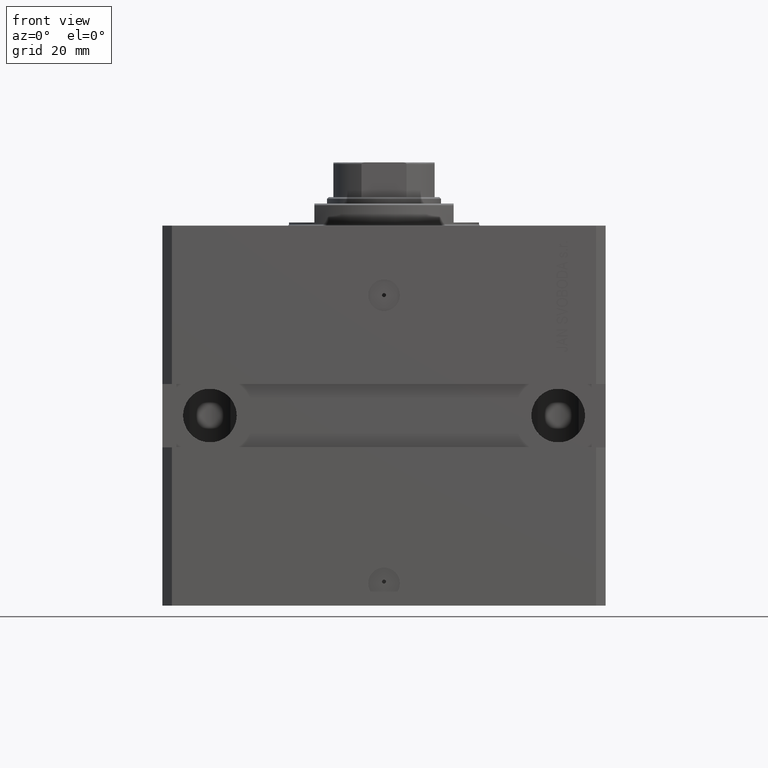
[diagram: clean part render]
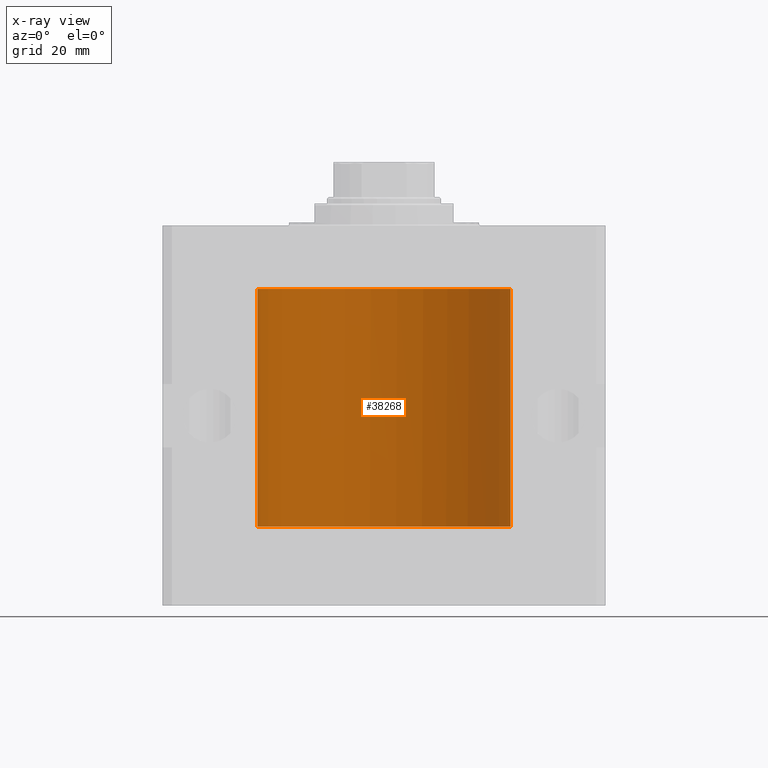
[diagram: x-ray — body ghosted, one internal face saturated and labeled with its STEP entity id]
A machine part, front view, then the same camera in x-ray: the body is ghosted and one INTERNAL B-rep face — a face not visible from any outside direction — is saturated and labeled: STEP entity #38268.
In plain terms, the highlighted cylindrical surface (partial cylindrical patch) has radius 40 mm, axis along (0, 0, 1).
Its self-contained STEP definition (entity closure, byte-faithful):
#646 = VERTEX_POINT ( 'NONE', #18501 ) ;
#1797 = CARTESIAN_POINT ( 'NONE',  ( 40.00000000000004974, 3.413887943360836494E-13, -34.37499999999679545 ) ) ;
#2349 = CARTESIAN_POINT ( 'NONE',  ( 40.00000000000000000, 0.000000000000000000, -95.00000000000000000 ) ) ;
#2494 = ORIENTED_EDGE ( 'NONE', *, *, #45490, .T. ) ;
#3295 = EDGE_LOOP ( 'NONE', ( #16822, #30318, #18247, #48485, #35360, #36513, #2494, #11039 ) ) ;
#4794 = CARTESIAN_POINT ( 'NONE',  ( 39.99511688944026844, 0.6250000000083444363, -34.99999999999904787 ) ) ;
#5038 = CARTESIAN_POINT ( 'NONE',  ( 39.99973678563279833, 0.1636739505491660862, -35.60873075736084559 ) ) ;
#5852 = CARTESIAN_POINT ( 'NONE',  ( 40.00000000000004974, 3.413887732429780293E-13, -94.37499999999677414 ) ) ;
#6877 = EDGE_CURVE ( 'NONE', #646, #42782, #9792, .T. ) ;
#7253 = CARTESIAN_POINT ( 'NONE',  ( 39.99511688944040344, 0.6249999999996637134, -34.83697203652874208 ) ) ;
#7490 = EDGE_CURVE ( 'NONE', #24640, #19104, #32615, .T. ) ;
#7761 = CARTESIAN_POINT ( 'NONE',  ( 39.99628216152225235, 0.5574163469044073338, -35.32638498894925050 ) ) ;
#9315 = DIRECTION ( 'NONE',  ( 1.000000000000000000, 0.000000000000000000, 0.000000000000000000 ) ) ;
#9792 = CIRCLE ( 'NONE', #26323, 40.00000000000000000 ) ;
#11039 = ORIENTED_EDGE ( 'NONE', *, *, #22628, .T. ) ;
#11058 = DIRECTION ( 'NONE',  ( 0.000000000000000000, 0.000000000000000000, 1.000000000000000000 ) ) ;
#13025 = FACE_OUTER_BOUND ( 'NONE', #3295, .T. ) ;
#13664 = VERTEX_POINT ( 'NONE', #33079 ) ;
#13731 = EDGE_CURVE ( 'NONE', #42782, #39512, #35260, .T. ) ;
#14245 = CARTESIAN_POINT ( 'NONE',  ( 39.99511688944039633, 0.6250000000000323075, -95.00000000000000000 ) ) ;
#16822 = ORIENTED_EDGE ( 'NONE', *, *, #13731, .F. ) ;
#17134 = LINE ( 'NONE', #2349, #34878 ) ;
#17305 = B_SPLINE_CURVE_WITH_KNOTS ( 'NONE', 3,
 ( #14245, #29038, #28554, #44101, #24602, #5852 ),
 .UNSPECIFIED., .F., .F.,
 ( 4, 2, 4 ),
 ( 0.0009772540346065596885, 0.001465659755748721432, 0.001954065476890883175 ),
 .UNSPECIFIED. ) ;
#17749 = EDGE_CURVE ( 'NONE', #13664, #24640, #33839, .T. ) ;
#18148 = AXIS2_PLACEMENT_3D ( 'NONE', #43118, #21158, #9315 ) ;
#18247 = ORIENTED_EDGE ( 'NONE', *, *, #29712, .T. ) ;
#18501 = CARTESIAN_POINT ( 'NONE',  ( 39.99511688944039633, 0.6250000000000323075, -95.00000000000000000 ) ) ;
#18611 = CARTESIAN_POINT ( 'NONE',  ( 39.99999999999999289, 0.1631284562790711046, -34.37500000000014211 ) ) ;
#18913 = CARTESIAN_POINT ( 'NONE',  ( 40.00000000000000000, 0.000000000000000000, -95.00000000000000000 ) ) ;
#19104 = VERTEX_POINT ( 'NONE', #1797 ) ;
#19269 = CARTESIAN_POINT ( 'NONE',  ( 40.00000000000000000, 0.000000000000000000, -20.00000000000000355 ) ) ;
#19594 = AXIS2_PLACEMENT_3D ( 'NONE', #44853, #11058, #26085 ) ;
#20089 = CARTESIAN_POINT ( 'NONE',  ( 39.99883059471594038, 0.3150922677711073816, -35.54594794608674135 ) ) ;
#20635 = VERTEX_POINT ( 'NONE', #43256 ) ;
#21158 = DIRECTION ( 'NONE',  ( -0.000000000000000000, -0.000000000000000000, 1.000000000000000000 ) ) ;
#22307 = CARTESIAN_POINT ( 'NONE',  ( 39.99626911702399923, 0.5586305617998182926, -34.67476192424639692 ) ) ;
#22628 = EDGE_CURVE ( 'NONE', #44985, #39512, #24347, .T. ) ;
#23056 = CARTESIAN_POINT ( 'NONE',  ( 39.99511688944039633, 0.6250000000003876899, -35.16310183128194922 ) ) ;
#24347 = CIRCLE ( 'NONE', #19594, 40.00000000000000000 ) ;
#24602 = CARTESIAN_POINT ( 'NONE',  ( 39.99999999999999289, 0.1631284562793052784, -94.37500000000015632 ) ) ;
#24640 = VERTEX_POINT ( 'NONE', #27018 ) ;
#26085 = DIRECTION ( 'NONE',  ( 1.000000000000000000, 0.000000000000000000, 0.000000000000000000 ) ) ;
#26323 = AXIS2_PLACEMENT_3D ( 'NONE', #41421, #30308, #26592 ) ;
#26391 = VECTOR ( 'NONE', #45893, 1000.000000000000000 ) ;
#26493 = CARTESIAN_POINT ( 'NONE',  ( -40.00000000000000000, 4.898587196589413026E-15, -20.00000000000000355 ) ) ;
#26532 = DIRECTION ( 'NONE',  ( -0.000000000000000000, -0.000000000000000000, 1.000000000000000000 ) ) ;
#26592 = DIRECTION ( 'NONE',  ( 1.000000000000000000, 0.000000000000000000, 0.000000000000000000 ) ) ;
#27018 = CARTESIAN_POINT ( 'NONE',  ( 39.99511688944026844, 0.6250000000083444363, -34.99999999999904787 ) ) ;
#28066 = CYLINDRICAL_SURFACE ( 'NONE', #18148, 40.00000000000000000 ) ;
#28554 = CARTESIAN_POINT ( 'NONE',  ( 39.99626911702399923, 0.5586305618003357676, -94.67476192424716430 ) ) ;
#29038 = CARTESIAN_POINT ( 'NONE',  ( 39.99511688944039633, 0.6250000000000321965, -94.83697203652990027 ) ) ;
#29712 = EDGE_CURVE ( 'NONE', #646, #20635, #17305, .T. ) ;
#30308 = DIRECTION ( 'NONE',  ( 0.000000000000000000, 0.000000000000000000, 1.000000000000000000 ) ) ;
#30318 = ORIENTED_EDGE ( 'NONE', *, *, #6877, .F. ) ;
#30431 = CARTESIAN_POINT ( 'NONE',  ( 40.00000000000004974, 3.413887943360836494E-13, -34.37499999999679545 ) ) ;
#32180 = DIRECTION ( 'NONE',  ( -0.000000000000000000, -0.000000000000000000, 1.000000000000000000 ) ) ;
#32615 = B_SPLINE_CURVE_WITH_KNOTS ( 'NONE', 3,
 ( #41542, #7253, #22307, #37364, #18611, #30431 ),
 .UNSPECIFIED., .F., .F.,
 ( 4, 2, 4 ),
 ( 0.0009772540346079494188, 0.001465659755749416406, 0.001954065476890883609 ),
 .UNSPECIFIED. ) ;
#33079 = CARTESIAN_POINT ( 'NONE',  ( 40.00000000000000000, -8.127381911450081348E-16, -35.62500000000000711 ) ) ;
#33839 = B_SPLINE_CURVE_WITH_KNOTS ( 'NONE', 3,
 ( #45997, #38841, #5038, #20089, #46238, #7761, #23056, #4794 ),
 .UNSPECIFIED., .F., .F.,
 ( 4, 2, 2, 4 ),
 ( 7.898288041491570923E-19, 0.0002443135086519880052, 0.0004886270173039750347, 0.0009772540346079494188 ),
 .UNSPECIFIED. ) ;
#34878 = VECTOR ( 'NONE', #32180, 1000.000000000000000 ) ;
#35260 = LINE ( 'NONE', #38483, #26391 ) ;
#35360 = ORIENTED_EDGE ( 'NONE', *, *, #17749, .T. ) ;
#36513 = ORIENTED_EDGE ( 'NONE', *, *, #7490, .T. ) ;
#37176 = LINE ( 'NONE', #18913, #42709 ) ;
#37364 = CARTESIAN_POINT ( 'NONE',  ( 39.99884730045106096, 0.3253091163521321660, -34.44141080451295522 ) ) ;
#38268 = ADVANCED_FACE ( 'NONE', ( #13025 ), #28066, .F. ) ;
#38483 = CARTESIAN_POINT ( 'NONE',  ( -40.00000000000000000, 4.898587196589413026E-15, -95.00000000000000000 ) ) ;
#38841 = CARTESIAN_POINT ( 'NONE',  ( 39.99999999999999289, 0.08261046678389016851, -35.62500000000000711 ) ) ;
#39418 = CARTESIAN_POINT ( 'NONE',  ( -40.00000000000000000, 4.898587196589413026E-15, -95.00000000000000000 ) ) ;
#39512 = VERTEX_POINT ( 'NONE', #26493 ) ;
#41421 = CARTESIAN_POINT ( 'NONE',  ( 0.000000000000000000, 0.000000000000000000, -95.00000000000000000 ) ) ;
#41542 = CARTESIAN_POINT ( 'NONE',  ( 39.99511688944026844, 0.6250000000083444363, -34.99999999999904787 ) ) ;
#42709 = VECTOR ( 'NONE', #26532, 1000.000000000000000 ) ;
#42782 = VERTEX_POINT ( 'NONE', #39418 ) ;
#43118 = CARTESIAN_POINT ( 'NONE',  ( 0.000000000000000000, 0.000000000000000000, -95.00000000000000000 ) ) ;
#43256 = CARTESIAN_POINT ( 'NONE',  ( 40.00000000000004974, 3.413887732429780293E-13, -94.37499999999677414 ) ) ;
#44101 = CARTESIAN_POINT ( 'NONE',  ( 39.99884730045106096, 0.3253091163526227736, -94.44141080451316839 ) ) ;
#44853 = CARTESIAN_POINT ( 'NONE',  ( 0.000000000000000000, 0.000000000000000000, -20.00000000000000355 ) ) ;
#44985 = VERTEX_POINT ( 'NONE', #19269 ) ;
#45490 = EDGE_CURVE ( 'NONE', #19104, #44985, #37176, .T. ) ;
#45893 = DIRECTION ( 'NONE',  ( -0.000000000000000000, -0.000000000000000000, 1.000000000000000000 ) ) ;
#45997 = CARTESIAN_POINT ( 'NONE',  ( 40.00000000000000000, -8.127381911450081348E-16, -35.62500000000000711 ) ) ;
#46238 = CARTESIAN_POINT ( 'NONE',  ( 39.99819409212158661, 0.3844402436586041860, -35.49948421922784547 ) ) ;
#47765 = EDGE_CURVE ( 'NONE', #20635, #13664, #17134, .T. ) ;
#48485 = ORIENTED_EDGE ( 'NONE', *, *, #47765, .T. ) ;